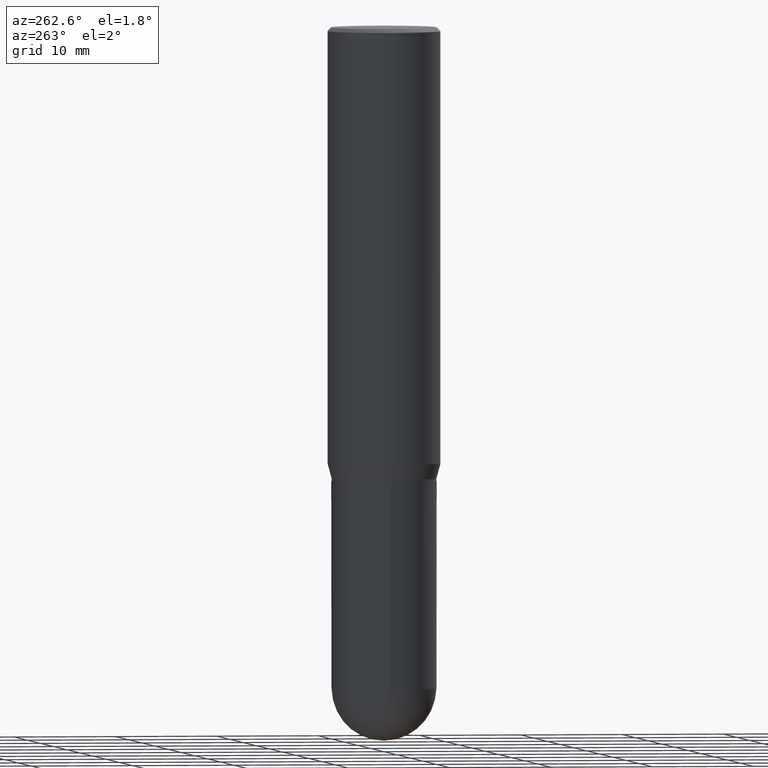
[diagram: clean part render]
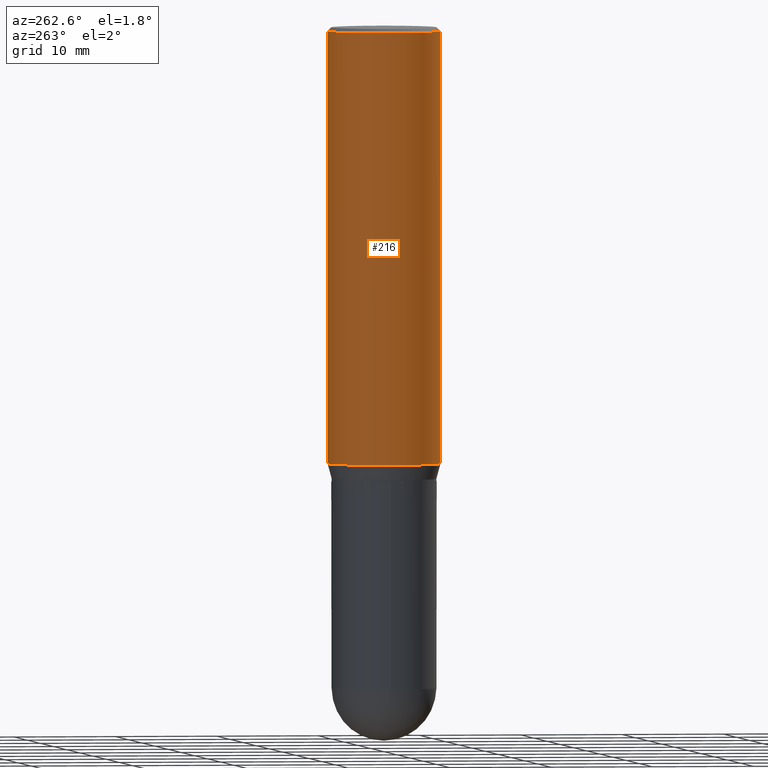
[diagram: same view with one face highlighted and labeled with its STEP entity id]
A machine part, auxiliary view. The second image highlights one B-rep face of the part: STEP entity #216.
In plain terms, the highlighted cylindrical surface (partial cylindrical patch) has radius 5.5562 mm, axis along (-0, 0, 1).
Its self-contained STEP definition (entity closure, byte-faithful):
#7 = DIRECTION ( 'NONE',  ( -2.445218819430257669E-29, 3.491839334104495039E-15, 1.000000000000000000 ) ) ;
#9 = ORIENTED_EDGE ( 'NONE', *, *, #22, .F. ) ;
#13 = CIRCLE ( 'NONE', #452, 0.2187500000000000000 ) ;
#22 = EDGE_CURVE ( 'NONE', #166, #503, #421, .T. ) ;
#23 = ORIENTED_EDGE ( 'NONE', *, *, #407, .F. ) ;
#43 = FACE_OUTER_BOUND ( 'NONE', #210, .T. ) ;
#44 = VECTOR ( 'NONE', #426, 39.37007874015748143 ) ;
#48 = ORIENTED_EDGE ( 'NONE', *, *, #496, .T. ) ;
#100 = DIRECTION ( 'NONE',  ( -2.445218819430257669E-29, 3.491839334104495039E-15, 1.000000000000000000 ) ) ;
#102 = VECTOR ( 'NONE', #186, 39.37007874015748143 ) ;
#110 = AXIS2_PLACEMENT_3D ( 'NONE', #361, #7, #246 ) ;
#113 = CARTESIAN_POINT ( 'NONE',  ( 3.667828229145395104E-31, -5.237759001156755081E-17, -0.01500000000000003587 ) ) ;
#120 = CARTESIAN_POINT ( 'NONE',  ( 1.554312234475218762E-15, 0.2187500000000000000, -7.638398543353582897E-16 ) ) ;
#131 = AXIS2_PLACEMENT_3D ( 'NONE', #183, #100, #498 ) ;
#156 = LINE ( 'NONE', #463, #44 ) ;
#160 = CIRCLE ( 'NONE', #131, 0.2187500000000000000 ) ;
#166 = VERTEX_POINT ( 'NONE', #447 ) ;
#183 = CARTESIAN_POINT ( 'NONE',  ( 4.111863840197258972E-29, -5.871853995066253491E-15, -1.681593404861546848 ) ) ;
#186 = DIRECTION ( 'NONE',  ( -2.445218819430257949E-29, 3.491839334104495039E-15, 1.000000000000000000 ) ) ;
#194 = CARTESIAN_POINT ( 'NONE',  ( 1.554312234475260375E-15, 0.2187499999999999167, -0.01500000000000080089 ) ) ;
#206 = CYLINDRICAL_SURFACE ( 'NONE', #110, 0.2187500000000000000 ) ;
#210 = EDGE_LOOP ( 'NONE', ( #9, #343, #48, #23 ) ) ;
#216 = ADVANCED_FACE ( 'NONE', ( #43 ), #206, .T. ) ;
#237 = DIRECTION ( 'NONE',  ( -6.982962677686265133E-15, -1.000000000000000000, 3.492862791899308071E-15 ) ) ;
#246 = DIRECTION ( 'NONE',  ( -6.982962677686265133E-15, -1.000000000000000000, 3.491839334104495039E-15 ) ) ;
#252 = CARTESIAN_POINT ( 'NONE',  ( -1.527523085743829428E-15, -0.2187500000000058287, -1.681593404861545960 ) ) ;
#275 = VERTEX_POINT ( 'NONE', #406 ) ;
#343 = ORIENTED_EDGE ( 'NONE', *, *, #383, .T. ) ;
#361 = CARTESIAN_POINT ( 'NONE',  ( 0.000000000000000000, 0.000000000000000000, 0.000000000000000000 ) ) ;
#383 = EDGE_CURVE ( 'NONE', #166, #387, #160, .T. ) ;
#387 = VERTEX_POINT ( 'NONE', #252 ) ;
#406 = CARTESIAN_POINT ( 'NONE',  ( -1.527523085743870054E-15, -0.2187500000000000555, -0.01499999999999927260 ) ) ;
#407 = EDGE_CURVE ( 'NONE', #503, #275, #13, .T. ) ;
#421 = LINE ( 'NONE', #120, #102 ) ;
#426 = DIRECTION ( 'NONE',  ( -2.445218819430257949E-29, 3.491839334104495039E-15, 1.000000000000000000 ) ) ;
#430 = DIRECTION ( 'NONE',  ( -2.445218819430257669E-29, 3.491839334104495039E-15, 1.000000000000000000 ) ) ;
#447 = CARTESIAN_POINT ( 'NONE',  ( 1.554312234475260177E-15, 0.2187499999999941436, -1.681593404861547736 ) ) ;
#452 = AXIS2_PLACEMENT_3D ( 'NONE', #113, #430, #237 ) ;
#463 = CARTESIAN_POINT ( 'NONE',  ( -1.527523085743870449E-15, -0.2187500000000000000, 7.638398543353582897E-16 ) ) ;
#496 = EDGE_CURVE ( 'NONE', #387, #275, #156, .T. ) ;
#498 = DIRECTION ( 'NONE',  ( -6.982962677686265133E-15, -1.000000000000000000, 3.746534391310989557E-15 ) ) ;
#503 = VERTEX_POINT ( 'NONE', #194 ) ;